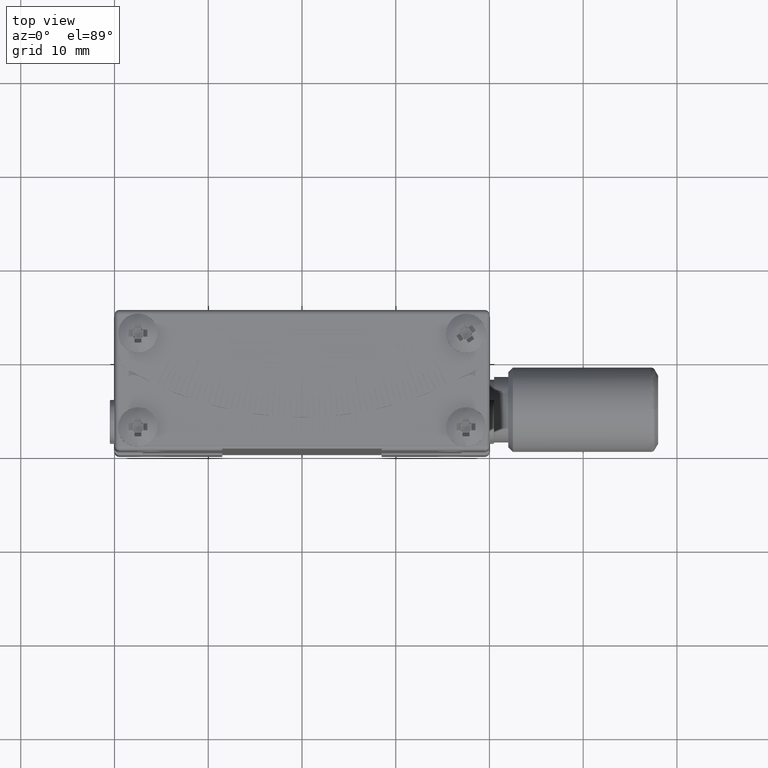
[diagram: clean part render]
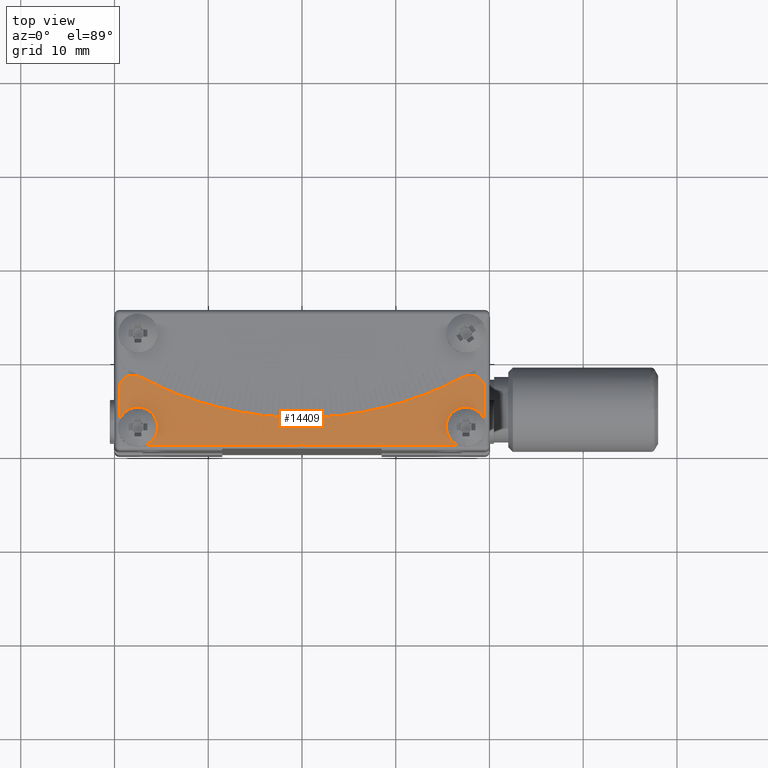
[diagram: same view with one face highlighted and labeled with its STEP entity id]
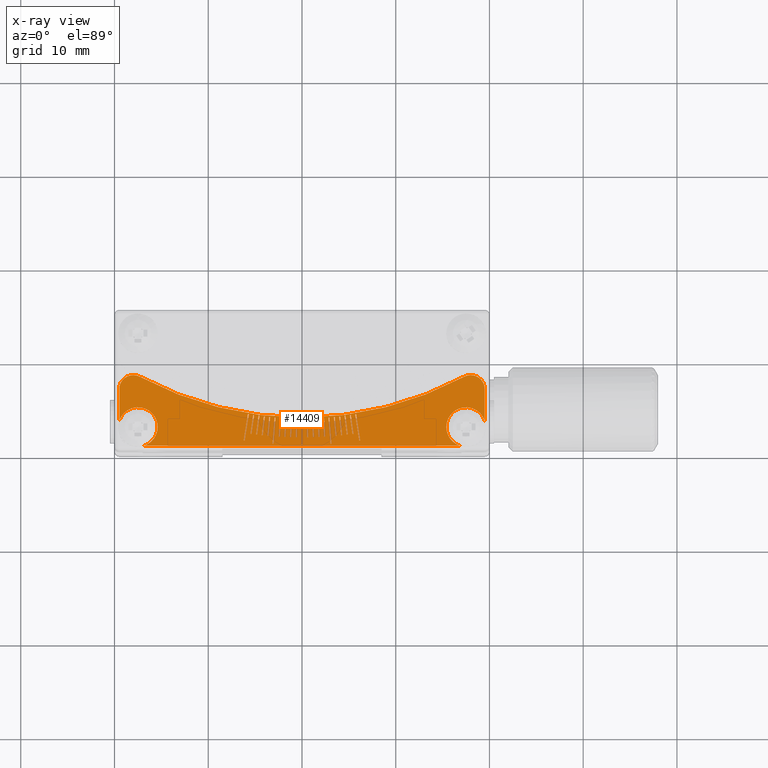
[diagram: x-ray of the same camera — body ghosted, the highlighted face saturated]
A machine part, top view. The second image highlights one B-rep face of the part: STEP entity #14409.
The next image is the same camera in x-ray: the body ghosted, the highlighted face saturated — about 0% of this face is hidden behind the body in this view.
In plain terms, the highlighted planar face has unit normal (0, 0, -1).
Its self-contained STEP definition (entity closure, byte-faithful):
#9 = VERTEX_POINT ( 'NONE', #20521 ) ;
#86 = CARTESIAN_POINT ( 'NONE',  ( 1.774040589721014971, 3.442985898927394928, 20.50000000000000000 ) ) ;
#113 = CARTESIAN_POINT ( 'NONE',  ( -2.348034351194289826, 3.475361265501734742, 20.50000000000000000 ) ) ;
#116 = EDGE_CURVE ( 'NONE', #9749, #27717, #14484, .T. ) ;
#176 = LINE ( 'NONE', #9134, #6710 ) ;
#235 = VERTEX_POINT ( 'NONE', #23158 ) ;
#243 = ORIENTED_EDGE ( 'NONE', *, *, #20906, .T. ) ;
#246 = CARTESIAN_POINT ( 'NONE',  ( 0.6248816452367139673, 3.405300617036825184, 20.50000000000000000 ) ) ;
#273 = VERTEX_POINT ( 'NONE', #10659 ) ;
#351 = VECTOR ( 'NONE', #19840, 1000.000000000000000 ) ;
#352 = ORIENTED_EDGE ( 'NONE', *, *, #12131, .T. ) ;
#366 = VECTOR ( 'NONE', #490, 1000.000000000000227 ) ;
#376 = EDGE_LOOP ( 'NONE', ( #9237, #15293, #6479, #3192 ) ) ;
#380 = VECTOR ( 'NONE', #26583, 1000.000000000000114 ) ;
#395 = LINE ( 'NONE', #20940, #7879 ) ;
#490 = DIRECTION ( 'NONE',  ( -0.9939609554551795956, 0.1097343110910453390, 0.000000000000000000 ) ) ;
#534 = DIRECTION ( 'NONE',  ( -0.09410831331851460257, -0.9955619646030799963, 0.000000000000000000 ) ) ;
#544 = EDGE_CURVE ( 'NONE', #10457, #13348, #27418, .T. ) ;
#562 = DIRECTION ( 'NONE',  ( 1.000000000000000000, 0.000000000000000000, 0.000000000000000000 ) ) ;
#631 = LINE ( 'NONE', #22673, #12894 ) ;
#645 = VECTOR ( 'NONE', #15571, 1000.000000000000000 ) ;
#661 = EDGE_LOOP ( 'NONE', ( #19562, #9373, #6644, #11826 ) ) ;
#689 = DIRECTION ( 'NONE',  ( -0.9969173337331279638, -0.07845909572784509622, 0.000000000000000000 ) ) ;
#810 = EDGE_CURVE ( 'NONE', #25294, #17917, #26805, .T. ) ;
#837 = CARTESIAN_POINT ( 'NONE',  ( -6.212902339614869263, 1.092901103803590068, 20.50000000000000000 ) ) ;
#896 = VERTEX_POINT ( 'NONE', #22981 ) ;
#926 = ORIENTED_EDGE ( 'NONE', *, *, #11685, .T. ) ;
#932 = VERTEX_POINT ( 'NONE', #9619 ) ;
#941 = ORIENTED_EDGE ( 'NONE', *, *, #17748, .T. ) ;
#1043 = EDGE_LOOP ( 'NONE', ( #22775, #5917, #11807, #21717 ) ) ;
#1058 = CARTESIAN_POINT ( 'NONE',  ( -2.473615390252919877, 1.479307808645192068, 20.50000000000000000 ) ) ;
#1074 = CARTESIAN_POINT ( 'NONE',  ( -18.00000000000000000, 0.5000000000000071054, 20.50000000000000000 ) ) ;
#1133 = CARTESIAN_POINT ( 'NONE',  ( -4.636802083519270035, 3.694868593568334525, 20.50000000000000000 ) ) ;
#1159 = ORIENTED_EDGE ( 'NONE', *, *, #27934, .F. ) ;
#1227 = ORIENTED_EDGE ( 'NONE', *, *, #27671, .F. ) ;
#1309 = LINE ( 'NONE', #14958, #22794 ) ;
#1318 = CARTESIAN_POINT ( 'NONE',  ( 4.285442455887105595, 1.638593834984629849, 20.50000000000000000 ) ) ;
#1357 = LINE ( 'NONE', #23245, #9633 ) ;
#1361 = CARTESIAN_POINT ( 'NONE',  ( -1.868253491140310141, 1.445206149003452012, 20.50000000000000000 ) ) ;
#1490 = VECTOR ( 'NONE', #6250, 1000.000000000000227 ) ;
#1496 = VECTOR ( 'NONE', #7722, 1000.000000000000114 ) ;
#1528 = VECTOR ( 'NONE', #17465, 1000.000000000000000 ) ;
#1543 = LINE ( 'NONE', #8009, #3817 ) ;
#1558 = LINE ( 'NONE', #26083, #18008 ) ;
#1637 = VERTEX_POINT ( 'NONE', #26407 ) ;
#1641 = EDGE_CURVE ( 'NONE', #21883, #1637, #17158, .T. ) ;
#1644 = EDGE_CURVE ( 'NONE', #25796, #20959, #23780, .T. ) ;
#1649 = VERTEX_POINT ( 'NONE', #16867 ) ;
#1687 = CARTESIAN_POINT ( 'NONE',  ( -6.212902339614869263, 1.092901103803590068, 20.50000000000000000 ) ) ;
#1694 = CARTESIAN_POINT ( 'NONE',  ( -18.00000000000000000, 6.533598938636989928, 20.50000000000000000 ) ) ;
#1755 = DIRECTION ( 'NONE',  ( -0.03141075907812847928, -0.9995065603657314890, 0.000000000000000000 ) ) ;
#1795 = CARTESIAN_POINT ( 'NONE',  ( -0.6562962798603648729, 1.405547352073502010, 20.50000000000000000 ) ) ;
#1813 = CARTESIAN_POINT ( 'NONE',  ( 0.5248939819885529712, 3.403729885305644576, 20.50000000000000000 ) ) ;
#1817 = DIRECTION ( 'NONE',  ( -0.9998766324816605877, -0.01570731731182069268, 0.000000000000000000 ) ) ;
#1844 = CARTESIAN_POINT ( 'NONE',  ( 4.636802083519261153, 3.694868593568334525, 20.50000000000000000 ) ) ;
#1857 = ORIENTED_EDGE ( 'NONE', *, *, #28027, .F. ) ;
#1877 = CARTESIAN_POINT ( 'NONE',  ( -1.199609110277785939, 3.419630428568140257, 20.50000000000000000 ) ) ;
#1925 = EDGE_CURVE ( 'NONE', #20959, #9522, #22877, .T. ) ;
#1926 = LINE ( 'NONE', #10885, #351 ) ;
#1997 = ORIENTED_EDGE ( 'NONE', *, *, #5970, .T. ) ;
#1999 = ORIENTED_EDGE ( 'NONE', *, *, #19140, .T. ) ;
#2048 = DIRECTION ( 'NONE',  ( -0.06279051952931337388, 0.9980267284282715590, 0.000000000000000000 ) ) ;
#2059 = VERTEX_POINT ( 'NONE', #1813 ) ;
#2082 = DIRECTION ( 'NONE',  ( 0.01570731731182084187, -0.9998766324816605877, 0.000000000000000000 ) ) ;
#2136 = VECTOR ( 'NONE', #9045, 1000.000000000000227 ) ;
#2169 = CARTESIAN_POINT ( 'NONE',  ( 0.6562962798603539927, 1.405547352073502010, 20.50000000000000000 ) ) ;
#2227 = ORIENTED_EDGE ( 'NONE', *, *, #4893, .T. ) ;
#2234 = CARTESIAN_POINT ( 'NONE',  ( 15.40000000000000036, 2.500000000000000000, 20.50000000000000000 ) ) ;
#2249 = LINE ( 'NONE', #15753, #13344 ) ;
#2282 = LINE ( 'NONE', #27373, #24394 ) ;
#2294 = LINE ( 'NONE', #1844, #28371 ) ;
#2351 = CARTESIAN_POINT ( 'NONE',  ( 1.868253491140300149, 1.445206149003452012, 20.50000000000000000 ) ) ;
#2400 = EDGE_LOOP ( 'NONE', ( #19329, #17227, #23086, #1857 ) ) ;
#2460 = VECTOR ( 'NONE', #15377, 1000.000000000000227 ) ;
#2465 = EDGE_CURVE ( 'NONE', #11606, #10650, #3991, .T. ) ;
#2549 = VERTEX_POINT ( 'NONE', #10451 ) ;
#2569 = CARTESIAN_POINT ( 'NONE',  ( 19.50000000000000000, 3.140312423743309989, 20.50000000000000000 ) ) ;
#2596 = VERTEX_POINT ( 'NONE', #25116 ) ;
#2606 = CARTESIAN_POINT ( 'NONE',  ( -2.373812717410095363, 1.473028756692265739, 20.50000000000000000 ) ) ;
#2672 = FACE_BOUND ( 'NONE', #2400, .T. ) ;
#2711 = EDGE_CURVE ( 'NONE', #13951, #25671, #6636, .T. ) ;
#2718 = CARTESIAN_POINT ( 'NONE',  ( -1.262430628434041857, 1.420617307836679943, 20.50000000000000000 ) ) ;
#2762 = LINE ( 'NONE', #5521, #13284 ) ;
#2763 = AXIS2_PLACEMENT_3D ( 'NONE', #1694, #10939, #10648 ) ;
#2774 = VECTOR ( 'NONE', #2932, 999.9999999999998863 ) ;
#2813 = FACE_BOUND ( 'NONE', #19710, .T. ) ;
#2860 = ORIENTED_EDGE ( 'NONE', *, *, #16920, .F. ) ;
#2862 = VERTEX_POINT ( 'NONE', #1318 ) ;
#2932 = DIRECTION ( 'NONE',  ( 0.1409012319375827493, 0.9900236577165576479, 0.000000000000000000 ) ) ;
#2935 = VECTOR ( 'NONE', #17460, 1000.000000000000000 ) ;
#2956 = FACE_BOUND ( 'NONE', #376, .T. ) ;
#2998 = EDGE_CURVE ( 'NONE', #10179, #25796, #4396, .T. ) ;
#3057 = EDGE_CURVE ( 'NONE', #12251, #14209, #9945, .T. ) ;
#3062 = EDGE_CURVE ( 'NONE', #14198, #13785, #18467, .T. ) ;
#3192 = ORIENTED_EDGE ( 'NONE', *, *, #11000, .T. ) ;
#3209 = CARTESIAN_POINT ( 'NONE',  ( 6.114133505555360060, 1.077257657299566018, 20.50000000000000000 ) ) ;
#3259 = ORIENTED_EDGE ( 'NONE', *, *, #116, .T. ) ;
#3306 = ORIENTED_EDGE ( 'NONE', *, *, #17763, .F. ) ;
#3381 = VECTOR ( 'NONE', #11828, 1000.000000000000227 ) ;
#3389 = DIRECTION ( 'NONE',  ( 0.000000000000000000, 0.000000000000000000, -1.000000000000000000 ) ) ;
#3495 = EDGE_CURVE ( 'NONE', #6861, #15456, #5514, .T. ) ;
#3588 = CARTESIAN_POINT ( 'NONE',  ( 3.041442504990444995, 0.7175340961283749319, 20.50000000000000000 ) ) ;
#3616 = CARTESIAN_POINT ( 'NONE',  ( -4.537590613387830096, 3.682335270211904987, 20.50000000000000000 ) ) ;
#3659 = ORIENTED_EDGE ( 'NONE', *, *, #26708, .F. ) ;
#3705 = EDGE_CURVE ( 'NONE', #10297, #17013, #4477, .T. ) ;
#3762 = CIRCLE ( 'NONE', #17353, 1.500000000000001332 ) ;
#3809 = CARTESIAN_POINT ( 'NONE',  ( 5.488288735676519536, 1.792131873737770054, 20.50000000000000000 ) ) ;
#3817 = VECTOR ( 'NONE', #5816, 1000.000000000000227 ) ;
#3844 = CARTESIAN_POINT ( 'NONE',  ( -1.099658454241219996, 3.416489352660335044, 20.50000000000000000 ) ) ;
#3868 = LINE ( 'NONE', #12824, #13323 ) ;
#3877 = ORIENTED_EDGE ( 'NONE', *, *, #3062, .F. ) ;
#3926 = EDGE_CURVE ( 'NONE', #17132, #10131, #5588, .T. ) ;
#3969 = VECTOR ( 'NONE', #28466, 1000.000000000000227 ) ;
#3991 = LINE ( 'NONE', #26602, #20320 ) ;
#4006 = EDGE_CURVE ( 'NONE', #13307, #18097, #1309, .T. ) ;
#4074 = CARTESIAN_POINT ( 'NONE',  ( 3.494142365687774809, 3.567137511193209765, 20.50000000000000000 ) ) ;
#4115 = CARTESIAN_POINT ( 'NONE',  ( 1.199609110277775947, 3.419630428568140257, 20.50000000000000000 ) ) ;
#4143 = VERTEX_POINT ( 'NONE', #15536 ) ;
#4236 = CIRCLE ( 'NONE', #11729, 2.099999999999999645 ) ;
#4243 = ORIENTED_EDGE ( 'NONE', *, *, #21866, .F. ) ;
#4254 = LINE ( 'NONE', #8364, #6152 ) ;
#4259 = CARTESIAN_POINT ( 'NONE',  ( -1.199609110277785939, 3.419630428568140257, 20.50000000000000000 ) ) ;
#4284 = VERTEX_POINT ( 'NONE', #16114 ) ;
#4289 = CARTESIAN_POINT ( 'NONE',  ( 4.537590613387820326, 3.682335270211904987, 20.50000000000000000 ) ) ;
#4326 = ORIENTED_EDGE ( 'NONE', *, *, #1925, .F. ) ;
#4380 = CARTESIAN_POINT ( 'NONE',  ( 17.28947368421054875, 7.854641085796060018, 20.50000000000000000 ) ) ;
#4396 = LINE ( 'NONE', #20098, #28792 ) ;
#4446 = VECTOR ( 'NONE', #25376, 1000.000000000000000 ) ;
#4469 = CARTESIAN_POINT ( 'NONE',  ( 19.50000000000000000, 6.533598938636999698, 20.50000000000000000 ) ) ;
#4477 = LINE ( 'NONE', #28848, #11550 ) ;
#4524 = CARTESIAN_POINT ( 'NONE',  ( 3.494142365687774809, 3.567137511193209765, 20.50000000000000000 ) ) ;
#4541 = VECTOR ( 'NONE', #23446, 1000.000000000000000 ) ;
#4560 = CARTESIAN_POINT ( 'NONE',  ( -5.206486271801369803, 3.772179189170890012, 20.50000000000000000 ) ) ;
#4579 = EDGE_CURVE ( 'NONE', #932, #5365, #26811, .T. ) ;
#4687 = VECTOR ( 'NONE', #26303, 1000.000000000000227 ) ;
#4711 = LINE ( 'NONE', #22327, #1528 ) ;
#4893 = EDGE_CURVE ( 'NONE', #12117, #24417, #12833, .T. ) ;
#4917 = VERTEX_POINT ( 'NONE', #15036 ) ;
#4973 = LINE ( 'NONE', #9363, #21786 ) ;
#4978 = DIRECTION ( 'NONE',  ( -0.9980267284282715590, 0.06279051952931347103, 0.000000000000000000 ) ) ;
#4993 = LINE ( 'NONE', #4560, #10882 ) ;
#5017 = VECTOR ( 'NONE', #534, 1000.000000000000000 ) ;
#5031 = FACE_BOUND ( 'NONE', #10162, .T. ) ;
#5093 = LINE ( 'NONE', #27688, #1496 ) ;
#5109 = CARTESIAN_POINT ( 'NONE',  ( -1.262430628434040081, 1.420617307836679943, 20.50000000000000000 ) ) ;
#5142 = CIRCLE ( 'NONE', #20152, 2.100000000000000977 ) ;
#5159 = CARTESIAN_POINT ( 'NONE',  ( -3.494142365687784579, 3.567137511193209765, 20.50000000000000000 ) ) ;
#5262 = VERTEX_POINT ( 'NONE', #20391 ) ;
#5268 = DIRECTION ( 'NONE',  ( 7.652743436093839813E-16, -1.000000000000000000, 0.000000000000000000 ) ) ;
#5273 = VECTOR ( 'NONE', #21330, 1000.000000000000227 ) ;
#5340 = CARTESIAN_POINT ( 'NONE',  ( 1.199609110277775947, 3.419630428568140257, 20.50000000000000000 ) ) ;
#5365 = VERTEX_POINT ( 'NONE', #12144 ) ;
#5404 = VECTOR ( 'NONE', #13622, 1000.000000000000000 ) ;
#5414 = LINE ( 'NONE', #16410, #17902 ) ;
#5439 = VERTEX_POINT ( 'NONE', #21398 ) ;
#5514 = LINE ( 'NONE', #27536, #10603 ) ;
#5521 = CARTESIAN_POINT ( 'NONE',  ( 2.348034351194280056, 3.475361265501734742, 20.50000000000000000 ) ) ;
#5588 = LINE ( 'NONE', #21289, #28402 ) ;
#5630 = VERTEX_POINT ( 'NONE', #9912 ) ;
#5673 = CARTESIAN_POINT ( 'NONE',  ( -3.041442504990454765, 0.7175340961283749319, 20.50000000000000000 ) ) ;
#5721 = VERTEX_POINT ( 'NONE', #9769 ) ;
#5745 = CARTESIAN_POINT ( 'NONE',  ( 2.821757036952475151, 3.508902630581134829, 20.50000000000000000 ) ) ;
#5816 = DIRECTION ( 'NONE',  ( -0.9988898749619699036, 0.04710645070964280395, 0.000000000000000000 ) ) ;
#5917 = ORIENTED_EDGE ( 'NONE', *, *, #10153, .T. ) ;
#5924 = DIRECTION ( 'NONE',  ( -0.01570731731182084187, -0.9998766324816605877, 0.000000000000000000 ) ) ;
#5970 = EDGE_CURVE ( 'NONE', #25677, #6929, #22528, .T. ) ;
#6048 = EDGE_CURVE ( 'NONE', #13785, #4917, #23098, .T. ) ;
#6144 = CARTESIAN_POINT ( 'NONE',  ( 2.921448770325780320, 3.516748540153920022, 20.50000000000000000 ) ) ;
#6148 = CARTESIAN_POINT ( 'NONE',  ( -0.6562962798603659831, 1.405547352073502010, 20.50000000000000000 ) ) ;
#6152 = VECTOR ( 'NONE', #8802, 1000.000000000000114 ) ;
#6237 = CARTESIAN_POINT ( 'NONE',  ( 1.262430628434031865, 1.420617307836679943, 20.50000000000000000 ) ) ;
#6250 = DIRECTION ( 'NONE',  ( 0.9939609554551795956, -0.1097343110910453390, 0.000000000000000000 ) ) ;
#6260 = ORIENTED_EDGE ( 'NONE', *, *, #27999, .T. ) ;
#6284 = VECTOR ( 'NONE', #9324, 1000.000000000000000 ) ;
#6295 = EDGE_CURVE ( 'NONE', #4143, #24545, #19547, .T. ) ;
#6307 = CARTESIAN_POINT ( 'NONE',  ( -2.248231678351470197, 3.469082213548810412, 20.50000000000000000 ) ) ;
#6433 = CARTESIAN_POINT ( 'NONE',  ( -3.582802795864514778, 1.566602750655200271, 20.50000000000000000 ) ) ;
#6442 = LINE ( 'NONE', #19934, #11259 ) ;
#6479 = ORIENTED_EDGE ( 'NONE', *, *, #4006, .T. ) ;
#6528 = CIRCLE ( 'NONE', #14022, 2.100000000000000977 ) ;
#6587 = ORIENTED_EDGE ( 'NONE', *, *, #17836, .F. ) ;
#6589 = DIRECTION ( 'NONE',  ( 0.9969173337331279638, -0.07845909572784509622, 0.000000000000000000 ) ) ;
#6636 = LINE ( 'NONE', #15580, #27546 ) ;
#6644 = ORIENTED_EDGE ( 'NONE', *, *, #27046, .F. ) ;
#6665 = EDGE_CURVE ( 'NONE', #15722, #12251, #17605, .T. ) ;
#6710 = VECTOR ( 'NONE', #27328, 1000.000000000000000 ) ;
#6778 = ORIENTED_EDGE ( 'NONE', *, *, #3926, .F. ) ;
#6792 = CARTESIAN_POINT ( 'NONE',  ( 3.966577738159505540, 3.615542314785884503, 20.50000000000000000 ) ) ;
#6826 = DIRECTION ( 'NONE',  ( -0.9995065603657314890, 0.03141075907812833357, 0.000000000000000000 ) ) ;
#6827 = DIRECTION ( 'NONE',  ( 1.000000000000000000, 0.000000000000000000, 0.000000000000000000 ) ) ;
#6844 = ORIENTED_EDGE ( 'NONE', *, *, #3705, .F. ) ;
#6861 = VERTEX_POINT ( 'NONE', #7177 ) ;
#6867 = EDGE_CURVE ( 'NONE', #896, #18310, #2762, .T. ) ;
#6871 = LINE ( 'NONE', #27257, #22938 ) ;
#6881 = CARTESIAN_POINT ( 'NONE',  ( -3.494142365687784579, 3.567137511193209765, 20.50000000000000000 ) ) ;
#6896 = LINE ( 'NONE', #7718, #7183 ) ;
#6901 = EDGE_CURVE ( 'NONE', #1637, #17132, #6896, .T. ) ;
#6913 = CARTESIAN_POINT ( 'NONE',  ( -4.887468550647880328, 1.710639190939380105, 20.50000000000000000 ) ) ;
#6929 = VERTEX_POINT ( 'NONE', #27145 ) ;
#6969 = CARTESIAN_POINT ( 'NONE',  ( 5.774885837502209185, 3.858428457469984973, 20.50000000000000000 ) ) ;
#6994 = EDGE_LOOP ( 'NONE', ( #18602, #21251, #13264, #28392 ) ) ;
#7074 = VERTEX_POINT ( 'NONE', #9885 ) ;
#7109 = ORIENTED_EDGE ( 'NONE', *, *, #9470, .T. ) ;
#7114 = CARTESIAN_POINT ( 'NONE',  ( 16.85968757625670023, 0.5000000000000139888, 20.50000000000000000 ) ) ;
#7131 = CARTESIAN_POINT ( 'NONE',  ( -4.788257080516440389, 1.698105867582950124, 20.50000000000000000 ) ) ;
#7177 = CARTESIAN_POINT ( 'NONE',  ( -1.774040589721024963, 3.442985898927394928, 20.50000000000000000 ) ) ;
#7183 = VECTOR ( 'NONE', #20675, 1000.000000000000000 ) ;
#7257 = LINE ( 'NONE', #6969, #16312 ) ;
#7346 = ORIENTED_EDGE ( 'NONE', *, *, #12669, .T. ) ;
#7353 = CARTESIAN_POINT ( 'NONE',  ( -5.107483906029719911, 3.758089065977134879, 20.50000000000000000 ) ) ;
#7379 = ORIENTED_EDGE ( 'NONE', *, *, #23897, .F. ) ;
#7428 = LINE ( 'NONE', #9916, #13496 ) ;
#7441 = ORIENTED_EDGE ( 'NONE', *, *, #6048, .F. ) ;
#7531 = DIRECTION ( 'NONE',  ( -0.1253332335643045636, -0.9921147013144777649, 0.000000000000000000 ) ) ;
#7560 = EDGE_LOOP ( 'NONE', ( #25603, #25030, #28554, #20564 ) ) ;
#7614 = CARTESIAN_POINT ( 'NONE',  ( -5.389286369904880303, 1.778041750544014921, 20.50000000000000000 ) ) ;
#7656 = FACE_BOUND ( 'NONE', #13999, .T. ) ;
#7677 = DIRECTION ( 'NONE',  ( -0.9876883405951375483, -0.1564344650402314241, 0.000000000000000000 ) ) ;
#7691 = CARTESIAN_POINT ( 'NONE',  ( 5.676117003442708864, 3.842785010965959813, 20.50000000000000000 ) ) ;
#7711 = DIRECTION ( 'NONE',  ( -0.04710645070964289416, -0.9988898749619699036, 0.000000000000000000 ) ) ;
#7718 = CARTESIAN_POINT ( 'NONE',  ( -0.05000000000000000278, 0.6000000000000099698, 20.50000000000000000 ) ) ;
#7722 = DIRECTION ( 'NONE',  ( 0.03141075907812823642, 0.9995065603657314890, 0.000000000000000000 ) ) ;
#7749 = EDGE_CURVE ( 'NONE', #25973, #14411, #11957, .T. ) ;
#7817 = VERTEX_POINT ( 'NONE', #27812 ) ;
#7828 = LINE ( 'NONE', #14727, #14149 ) ;
#7852 = VERTEX_POINT ( 'NONE', #3588 ) ;
#7879 = VECTOR ( 'NONE', #14047, 1000.000000000000227 ) ;
#7883 = EDGE_CURVE ( 'NONE', #18310, #17857, #3868, .T. ) ;
#7911 = CARTESIAN_POINT ( 'NONE',  ( -19.50000000000000000, 6.533598938636989928, 20.50000000000000000 ) ) ;
#7921 = VERTEX_POINT ( 'NONE', #8419 ) ;
#7940 = FACE_BOUND ( 'NONE', #1043, .T. ) ;
#7977 = CARTESIAN_POINT ( 'NONE',  ( -0.05000000000000189709, 3.399999999999999911, 20.50000000000000000 ) ) ;
#7997 = EDGE_CURVE ( 'NONE', #13659, #14461, #8719, .T. ) ;
#8009 = CARTESIAN_POINT ( 'NONE',  ( -1.774040589721024963, 3.442985898927394928, 20.50000000000000000 ) ) ;
#8032 = VECTOR ( 'NONE', #8840, 999.9999999999998863 ) ;
#8042 = CARTESIAN_POINT ( 'NONE',  ( 1.674151602224824842, 3.438275253856435398, 20.50000000000000000 ) ) ;
#8068 = ORIENTED_EDGE ( 'NONE', *, *, #10332, .T. ) ;
#8094 = ORIENTED_EDGE ( 'NONE', *, *, #12286, .F. ) ;
#8096 = AXIS2_PLACEMENT_3D ( 'NONE', #13507, #27580, #562 ) ;
#8182 = EDGE_CURVE ( 'NONE', #7852, #13951, #25423, .T. ) ;
#8220 = EDGE_LOOP ( 'NONE', ( #25515, #19438, #25999, #11136 ) ) ;
#8226 = ORIENTED_EDGE ( 'NONE', *, *, #24330, .F. ) ;
#8264 = CARTESIAN_POINT ( 'NONE',  ( 3.682358992324804792, 1.576013581987050216, 20.50000000000000000 ) ) ;
#8364 = CARTESIAN_POINT ( 'NONE',  ( 2.921448770325780320, 3.516748540153920022, 20.50000000000000000 ) ) ;
#8419 = CARTESIAN_POINT ( 'NONE',  ( 3.141134238363744835, 0.7253800057011589031, 20.50000000000000000 ) ) ;
#8469 = VECTOR ( 'NONE', #13061, 1000.000000000000000 ) ;
#8498 = ORIENTED_EDGE ( 'NONE', *, *, #21702, .T. ) ;
#8552 = VECTOR ( 'NONE', #12406, 1000.000000000000000 ) ;
#8568 = DIRECTION ( 'NONE',  ( -0.9995065603657314890, -0.03141075907812833357, 0.000000000000000000 ) ) ;
#8598 = EDGE_CURVE ( 'NONE', #17917, #28391, #26364, .T. ) ;
#8606 = CARTESIAN_POINT ( 'NONE',  ( 0.04999999999999139855, 3.399999999999999911, 20.50000000000000000 ) ) ;
#8643 = VECTOR ( 'NONE', #11208, 1000.000000000000000 ) ;
#8660 = LINE ( 'NONE', #24225, #8469 ) ;
#8717 = VECTOR ( 'NONE', #8568, 1000.000000000000114 ) ;
#8719 = LINE ( 'NONE', #9004, #8643 ) ;
#8802 = DIRECTION ( 'NONE',  ( 0.07845909572784529051, -0.9969173337331278528, 0.000000000000000000 ) ) ;
#8836 = EDGE_LOOP ( 'NONE', ( #23755, #16587, #352, #21134 ) ) ;
#8837 = LINE ( 'NONE', #22192, #17191 ) ;
#8840 = DIRECTION ( 'NONE',  ( -0.1253332335643043693, 0.9921147013144778759, 0.000000000000000000 ) ) ;
#8933 = EDGE_CURVE ( 'NONE', #8961, #15926, #3762, .T. ) ;
#8961 = VERTEX_POINT ( 'NONE', #4469 ) ;
#8963 = CARTESIAN_POINT ( 'NONE',  ( 3.682358992324804792, 1.576013581987050216, 20.50000000000000000 ) ) ;
#9004 = CARTESIAN_POINT ( 'NONE',  ( -2.821757036952485365, 3.508902630581134829, 20.50000000000000000 ) ) ;
#9045 = DIRECTION ( 'NONE',  ( 0.04710645070964289416, -0.9988898749619699036, 0.000000000000000000 ) ) ;
#9134 = CARTESIAN_POINT ( 'NONE',  ( 5.206486271801360921, 3.772179189170890012, 20.50000000000000000 ) ) ;
#9160 = ORIENTED_EDGE ( 'NONE', *, *, #19011, .F. ) ;
#9211 = LINE ( 'NONE', #4524, #2935 ) ;
#9237 = ORIENTED_EDGE ( 'NONE', *, *, #18534, .T. ) ;
#9324 = DIRECTION ( 'NONE',  ( -0.9998766324816605877, 0.01570731731182069268, 0.000000000000000000 ) ) ;
#9363 = CARTESIAN_POINT ( 'NONE',  ( 3.141134238363744835, 0.7253800057011589031, 20.50000000000000000 ) ) ;
#9373 = ORIENTED_EDGE ( 'NONE', *, *, #25832, .F. ) ;
#9385 = CARTESIAN_POINT ( 'NONE',  ( 4.065973833705013973, 3.626515745894989706, 20.50000000000000000 ) ) ;
#9393 = CARTESIAN_POINT ( 'NONE',  ( 5.676117003442708864, 3.842785010965959813, 20.50000000000000000 ) ) ;
#9452 = CARTESIAN_POINT ( 'NONE',  ( -4.065973833705024632, 3.626515745894989706, 20.50000000000000000 ) ) ;
#9461 = DIRECTION ( 'NONE',  ( -0.03141075907812823642, 0.9995065603657314890, 0.000000000000000000 ) ) ;
#9470 = EDGE_CURVE ( 'NONE', #24277, #22772, #11607, .T. ) ;
#9484 = VECTOR ( 'NONE', #18622, 1000.000000000000227 ) ;
#9512 = EDGE_CURVE ( 'NONE', #28391, #7074, #27463, .T. ) ;
#9521 = DIRECTION ( 'NONE',  ( 0.06279051952931356817, -0.9980267284282715590, 0.000000000000000000 ) ) ;
#9522 = VERTEX_POINT ( 'NONE', #16434 ) ;
#9598 = DIRECTION ( 'NONE',  ( -0.9921147013144777649, -0.1253332335643045636, 0.000000000000000000 ) ) ;
#9619 = CARTESIAN_POINT ( 'NONE',  ( 1.774040589721014971, 3.442985898927394928, 20.50000000000000000 ) ) ;
#9633 = VECTOR ( 'NONE', #5924, 1000.000000000000000 ) ;
#9716 = LINE ( 'NONE', #25268, #25378 ) ;
#9727 = DIRECTION ( 'NONE',  ( -0.07845909572784499908, 0.9969173337331279638, 0.000000000000000000 ) ) ;
#9737 = CARTESIAN_POINT ( 'NONE',  ( -17.50000000000000000, 2.500000000000000000, 20.50000000000000000 ) ) ;
#9749 = VERTEX_POINT ( 'NONE', #24065 ) ;
#9751 = DIRECTION ( 'NONE',  ( -0.1564344650402309522, 0.9876883405951376593, 0.000000000000000000 ) ) ;
#9769 = CARTESIAN_POINT ( 'NONE',  ( 4.887468550647869669, 1.710639190939380105, 20.50000000000000000 ) ) ;
#9885 = CARTESIAN_POINT ( 'NONE',  ( -5.107483906029719911, 3.758089065977134879, 20.50000000000000000 ) ) ;
#9910 = EDGE_LOOP ( 'NONE', ( #12392, #11839, #20596, #7379 ) ) ;
#9912 = CARTESIAN_POINT ( 'NONE',  ( -16.85968757625670023, 0.5000000000000071054, 20.50000000000000000 ) ) ;
#9916 = CARTESIAN_POINT ( 'NONE',  ( 4.065973833705013973, 3.626515745894989706, 20.50000000000000000 ) ) ;
#9938 = CARTESIAN_POINT ( 'NONE',  ( 4.636802083519261153, 3.694868593568334525, 20.50000000000000000 ) ) ;
#9945 = LINE ( 'NONE', #837, #14256 ) ;
#9954 = CARTESIAN_POINT ( 'NONE',  ( -3.682358992324815006, 1.576013581987050216, 20.50000000000000000 ) ) ;
#9976 = ORIENTED_EDGE ( 'NONE', *, *, #10427, .T. ) ;
#10000 = FACE_BOUND ( 'NONE', #23716, .T. ) ;
#10048 = ORIENTED_EDGE ( 'NONE', *, *, #2465, .T. ) ;
#10057 = VECTOR ( 'NONE', #1755, 1000.000000000000114 ) ;
#10131 = VERTEX_POINT ( 'NONE', #8606 ) ;
#10147 = PLANE ( 'NONE',  #14615 ) ;
#10153 = EDGE_CURVE ( 'NONE', #1649, #22523, #26227, .T. ) ;
#10162 = EDGE_LOOP ( 'NONE', ( #8094, #2860, #18043, #12664 ) ) ;
#10179 = VERTEX_POINT ( 'NONE', #1058 ) ;
#10247 = CARTESIAN_POINT ( 'NONE',  ( 3.394586169227475025, 3.557726679861360264, 20.50000000000000000 ) ) ;
#10286 = CARTESIAN_POINT ( 'NONE',  ( 18.00000000000000000, 6.533598938636999698, 20.50000000000000000 ) ) ;
#10297 = VERTEX_POINT ( 'NONE', #3844 ) ;
#10307 = ORIENTED_EDGE ( 'NONE', *, *, #6901, .F. ) ;
#10320 = DIRECTION ( 'NONE',  ( -0.9939609554551795956, -0.1097343110910453390, 0.000000000000000000 ) ) ;
#10324 = CARTESIAN_POINT ( 'NONE',  ( -5.774885837502219843, 3.858428457469984973, 20.50000000000000000 ) ) ;
#10332 = EDGE_CURVE ( 'NONE', #19918, #25677, #8837, .T. ) ;
#10357 = DIRECTION ( 'NONE',  ( -0.09410831331851439441, 0.9955619646030799963, 0.000000000000000000 ) ) ;
#10363 = CARTESIAN_POINT ( 'NONE',  ( -2.921448770325790090, 3.516748540153920022, 20.50000000000000000 ) ) ;
#10427 = EDGE_CURVE ( 'NONE', #10650, #24277, #1926, .T. ) ;
#10451 = CARTESIAN_POINT ( 'NONE',  ( -4.285442455887115365, 1.638593834984629849, 20.50000000000000000 ) ) ;
#10457 = VERTEX_POINT ( 'NONE', #5159 ) ;
#10537 = VECTOR ( 'NONE', #10357, 1000.000000000000000 ) ;
#10603 = VECTOR ( 'NONE', #7711, 1000.000000000000227 ) ;
#10648 = DIRECTION ( 'NONE',  ( -1.000000000000000000, 0.000000000000000000, 0.000000000000000000 ) ) ;
#10650 = VERTEX_POINT ( 'NONE', #3809 ) ;
#10659 = CARTESIAN_POINT ( 'NONE',  ( -3.966577738159514865, 3.615542314785884503, 20.50000000000000000 ) ) ;
#10703 = DIRECTION ( 'NONE',  ( -0.1564344650402314241, -0.9876883405951375483, 0.000000000000000000 ) ) ;
#10880 = ORIENTED_EDGE ( 'NONE', *, *, #22358, .T. ) ;
#10881 = DIRECTION ( 'NONE',  ( 0.1409012319375829436, -0.9900236577165575369, 0.000000000000000000 ) ) ;
#10882 = VECTOR ( 'NONE', #23035, 1000.000000000000000 ) ;
#10885 = CARTESIAN_POINT ( 'NONE',  ( 5.488288735676519536, 1.792131873737770054, 20.50000000000000000 ) ) ;
#10939 = DIRECTION ( 'NONE',  ( 0.000000000000000000, 0.000000000000000000, 1.000000000000000000 ) ) ;
#10940 = CARTESIAN_POINT ( 'NONE',  ( 4.788257080516429731, 1.698105867582950124, 20.50000000000000000 ) ) ;
#10978 = LINE ( 'NONE', #24335, #23091 ) ;
#11000 = EDGE_CURVE ( 'NONE', #18097, #13228, #7428, .T. ) ;
#11001 = VERTEX_POINT ( 'NONE', #18432 ) ;
#11009 = CARTESIAN_POINT ( 'NONE',  ( 5.389286369904870533, 1.778041750544014921, 20.50000000000000000 ) ) ;
#11136 = ORIENTED_EDGE ( 'NONE', *, *, #15035, .T. ) ;
#11201 = DIRECTION ( 'NONE',  ( 0.01570731731182059207, 0.9998766324816605877, 0.000000000000000000 ) ) ;
#11208 = DIRECTION ( 'NONE',  ( 0.07845909572784499908, 0.9969173337331279638, 0.000000000000000000 ) ) ;
#11232 = DIRECTION ( 'NONE',  ( 0.1564344650402309522, 0.9876883405951376593, 0.000000000000000000 ) ) ;
#11259 = VECTOR ( 'NONE', #28904, 1000.000000000000000 ) ;
#11395 = EDGE_CURVE ( 'NONE', #273, #28944, #18689, .T. ) ;
#11400 = EDGE_CURVE ( 'NONE', #26641, #11497, #7257, .T. ) ;
#11432 = EDGE_CURVE ( 'NONE', #27889, #12117, #11793, .T. ) ;
#11449 = CARTESIAN_POINT ( 'NONE',  ( -0.5563086166122048759, 1.403976620342320070, 20.50000000000000000 ) ) ;
#11497 = VERTEX_POINT ( 'NONE', #27080 ) ;
#11545 = VECTOR ( 'NONE', #4978, 1000.000000000000000 ) ;
#11550 = VECTOR ( 'NONE', #6826, 1000.000000000000114 ) ;
#11570 = CARTESIAN_POINT ( 'NONE',  ( -2.348034351194289826, 3.475361265501734742, 20.50000000000000000 ) ) ;
#11606 = VERTEX_POINT ( 'NONE', #26160 ) ;
#11607 = LINE ( 'NONE', #16153, #24830 ) ;
#11622 = EDGE_CURVE ( 'NONE', #13348, #24756, #14426, .T. ) ;
#11628 = FACE_BOUND ( 'NONE', #6994, .T. ) ;
#11648 = DIRECTION ( 'NONE',  ( 0.9876883405951375483, 0.1564344650402314241, 0.000000000000000000 ) ) ;
#11660 = LINE ( 'NONE', #1074, #22675 ) ;
#11685 = EDGE_CURVE ( 'NONE', #28828, #9749, #17790, .T. ) ;
#11729 = AXIS2_PLACEMENT_3D ( 'NONE', #14179, #25057, #15952 ) ;
#11746 = VERTEX_POINT ( 'NONE', #2234 ) ;
#11784 = VECTOR ( 'NONE', #2048, 1000.000000000000000 ) ;
#11793 = LINE ( 'NONE', #5340, #16774 ) ;
#11800 = DIRECTION ( 'NONE',  ( 1.000000000000000000, 0.000000000000000000, 0.000000000000000000 ) ) ;
#11807 = ORIENTED_EDGE ( 'NONE', *, *, #21782, .T. ) ;
#11826 = ORIENTED_EDGE ( 'NONE', *, *, #7997, .F. ) ;
#11828 = DIRECTION ( 'NONE',  ( 0.1097343110910455471, -0.9939609554551795956, 0.000000000000000000 ) ) ;
#11839 = ORIENTED_EDGE ( 'NONE', *, *, #544, .F. ) ;
#11840 = CARTESIAN_POINT ( 'NONE',  ( 5.107483906029710141, 3.758089065977134879, 20.50000000000000000 ) ) ;
#11913 = FACE_BOUND ( 'NONE', #11918, .T. ) ;
#11918 = EDGE_LOOP ( 'NONE', ( #16427, #23808, #4326, #26189 ) ) ;
#11957 = LINE ( 'NONE', #18707, #6284 ) ;
#11961 = DIRECTION ( 'NONE',  ( 0.9995065603657314890, -0.03141075907812833357, 0.000000000000000000 ) ) ;
#12041 = DIRECTION ( 'NONE',  ( -1.219727444046191995E-16, 1.000000000000000000, 0.000000000000000000 ) ) ;
#12084 = EDGE_CURVE ( 'NONE', #25671, #7921, #4254, .T. ) ;
#12108 = EDGE_LOOP ( 'NONE', ( #27058, #8226, #6844, #22482 ) ) ;
#12117 = VERTEX_POINT ( 'NONE', #21872 ) ;
#12131 = EDGE_CURVE ( 'NONE', #17857, #11001, #17607, .T. ) ;
#12144 = CARTESIAN_POINT ( 'NONE',  ( 1.868253491140300149, 1.445206149003452012, 20.50000000000000000 ) ) ;
#12202 = ORIENTED_EDGE ( 'NONE', *, *, #15602, .F. ) ;
#12251 = VERTEX_POINT ( 'NONE', #1687 ) ;
#12286 = EDGE_CURVE ( 'NONE', #2549, #29059, #26069, .T. ) ;
#12295 = EDGE_CURVE ( 'NONE', #7817, #6861, #1543, .T. ) ;
#12392 = ORIENTED_EDGE ( 'NONE', *, *, #11622, .F. ) ;
#12406 = DIRECTION ( 'NONE',  ( 0.9998766324816605877, 0.01570731731182069268, 0.000000000000000000 ) ) ;
#12474 = DIRECTION ( 'NONE',  ( 0.9900236577165575369, -0.1409012319375829436, 0.000000000000000000 ) ) ;
#12625 = VERTEX_POINT ( 'NONE', #7114 ) ;
#12664 = ORIENTED_EDGE ( 'NONE', *, *, #28706, .F. ) ;
#12666 = LINE ( 'NONE', #1361, #5273 ) ;
#12669 = EDGE_CURVE ( 'NONE', #6929, #2059, #7828, .T. ) ;
#12770 = VERTEX_POINT ( 'NONE', #8264 ) ;
#12805 = VECTOR ( 'NONE', #13799, 1000.000000000000000 ) ;
#12824 = CARTESIAN_POINT ( 'NONE',  ( 2.473615390252904778, 1.479307808645192068, 20.50000000000000000 ) ) ;
#12833 = LINE ( 'NONE', #6237, #8717 ) ;
#12894 = VECTOR ( 'NONE', #9598, 1000.000000000000000 ) ;
#13039 = EDGE_CURVE ( 'NONE', #4284, #10457, #8660, .T. ) ;
#13061 = DIRECTION ( 'NONE',  ( -0.9955619646030799963, 0.09410831331851449155, 0.000000000000000000 ) ) ;
#13228 = VERTEX_POINT ( 'NONE', #9385 ) ;
#13264 = ORIENTED_EDGE ( 'NONE', *, *, #20522, .F. ) ;
#13284 = VECTOR ( 'NONE', #9521, 1000.000000000000000 ) ;
#13307 = VERTEX_POINT ( 'NONE', #23034 ) ;
#13323 = VECTOR ( 'NONE', #16932, 1000.000000000000000 ) ;
#13336 = CARTESIAN_POINT ( 'NONE',  ( -3.141134238363754605, 0.7253800057011589031, 20.50000000000000000 ) ) ;
#13344 = VECTOR ( 'NONE', #11201, 1000.000000000000000 ) ;
#13348 = VERTEX_POINT ( 'NONE', #9954 ) ;
#13442 = CARTESIAN_POINT ( 'NONE',  ( 17.50000000000000000, 2.500000000000000000, 20.50000000000000000 ) ) ;
#13496 = VECTOR ( 'NONE', #16090, 1000.000000000000227 ) ;
#13507 = CARTESIAN_POINT ( 'NONE',  ( -5.204170427930419706E-15, 40.00000000000000000, 20.50000000000000000 ) ) ;
#13622 = DIRECTION ( 'NONE',  ( -0.06279051952931356817, -0.9980267284282715590, 0.000000000000000000 ) ) ;
#13659 = VERTEX_POINT ( 'NONE', #5673 ) ;
#13785 = VERTEX_POINT ( 'NONE', #25411 ) ;
#13799 = DIRECTION ( 'NONE',  ( 0.9980267284282715590, 0.06279051952931347103, 0.000000000000000000 ) ) ;
#13824 = AXIS2_PLACEMENT_3D ( 'NONE', #9737, #26935, #6827 ) ;
#13834 = FACE_BOUND ( 'NONE', #19509, .T. ) ;
#13951 = VERTEX_POINT ( 'NONE', #5745 ) ;
#13955 = ORIENTED_EDGE ( 'NONE', *, *, #12295, .F. ) ;
#13992 = ORIENTED_EDGE ( 'NONE', *, *, #21190, .T. ) ;
#13999 = EDGE_LOOP ( 'NONE', ( #4243, #6587, #24661, #20984 ) ) ;
#14022 = AXIS2_PLACEMENT_3D ( 'NONE', #13442, #22394, #11800 ) ;
#14047 = DIRECTION ( 'NONE',  ( 0.1097343110910453390, 0.9939609554551795956, 0.000000000000000000 ) ) ;
#14067 = EDGE_LOOP ( 'NONE', ( #27588, #2227, #6260, #15686 ) ) ;
#14149 = VECTOR ( 'NONE', #19267, 1000.000000000000000 ) ;
#14179 = CARTESIAN_POINT ( 'NONE',  ( -17.50000000000000000, 2.500000000000000000, 20.50000000000000000 ) ) ;
#14198 = VERTEX_POINT ( 'NONE', #27153 ) ;
#14209 = VERTEX_POINT ( 'NONE', #28822 ) ;
#14214 = CARTESIAN_POINT ( 'NONE',  ( 1.162479972397465922, 1.417476231928871844, 20.50000000000000000 ) ) ;
#14256 = VECTOR ( 'NONE', #23168, 1000.000000000000114 ) ;
#14348 = EDGE_CURVE ( 'NONE', #28033, #8961, #9716, .T. ) ;
#14409 = ADVANCED_FACE ( 'NONE', ( #16028, #18228, #24988, #2956, #25135, #13834, #2672, #11628, #2813, #5031, #16457, #20581, #11913, #20871, #27620, #7656, #25700, #16891, #28059, #10000, #19100, #7940 ), #10147, .F. ) ;
#14411 = VERTEX_POINT ( 'NONE', #25998 ) ;
#14426 = LINE ( 'NONE', #21176, #20217 ) ;
#14461 = VERTEX_POINT ( 'NONE', #27919 ) ;
#14484 = LINE ( 'NONE', #9938, #4541 ) ;
#14615 = AXIS2_PLACEMENT_3D ( 'NONE', #10286, #3389, #23657 ) ;
#14727 = CARTESIAN_POINT ( 'NONE',  ( 0.5248939819885529712, 3.403729885305644576, 20.50000000000000000 ) ) ;
#14736 = VERTEX_POINT ( 'NONE', #11449 ) ;
#14850 = VERTEX_POINT ( 'NONE', #10247 ) ;
#14868 = DIRECTION ( 'NONE',  ( -1.000000000000000000, 0.000000000000000000, 0.000000000000000000 ) ) ;
#14874 = LINE ( 'NONE', #10324, #19821 ) ;
#14921 = CARTESIAN_POINT ( 'NONE',  ( -5.206486271801369803, 3.772179189170890012, 20.50000000000000000 ) ) ;
#14958 = CARTESIAN_POINT ( 'NONE',  ( 3.966577738159505540, 3.615542314785884503, 20.50000000000000000 ) ) ;
#14983 = VECTOR ( 'NONE', #7531, 1000.000000000000000 ) ;
#15031 = DIRECTION ( 'NONE',  ( -1.000000000000000000, 0.000000000000000000, 0.000000000000000000 ) ) ;
#15035 = EDGE_CURVE ( 'NONE', #24545, #932, #10978, .T. ) ;
#15036 = CARTESIAN_POINT ( 'NONE',  ( -4.887468550647890098, 1.710639190939380105, 20.50000000000000000 ) ) ;
#15064 = DIRECTION ( 'NONE',  ( 0.1253332335643045636, -0.9921147013144777649, 0.000000000000000000 ) ) ;
#15233 = CARTESIAN_POINT ( 'NONE',  ( -1.674151602224834834, 3.438275253856435398, 20.50000000000000000 ) ) ;
#15270 = EDGE_CURVE ( 'NONE', #14736, #25973, #2249, .T. ) ;
#15293 = ORIENTED_EDGE ( 'NONE', *, *, #25307, .T. ) ;
#15347 = CARTESIAN_POINT ( 'NONE',  ( -0.5248939819885640734, 3.403729885305644576, 20.50000000000000000 ) ) ;
#15377 = DIRECTION ( 'NONE',  ( 0.04710645070964259579, 0.9988898749619699036, 0.000000000000000000 ) ) ;
#15456 = VERTEX_POINT ( 'NONE', #23806 ) ;
#15536 = CARTESIAN_POINT ( 'NONE',  ( 1.768364503644110020, 1.440495503932491816, 20.50000000000000000 ) ) ;
#15571 = DIRECTION ( 'NONE',  ( -0.9955619646030799963, -0.09410831331851449155, 0.000000000000000000 ) ) ;
#15580 = CARTESIAN_POINT ( 'NONE',  ( 2.921448770325780320, 3.516748540153920022, 20.50000000000000000 ) ) ;
#15602 = EDGE_CURVE ( 'NONE', #4917, #24068, #16282, .T. ) ;
#15686 = ORIENTED_EDGE ( 'NONE', *, *, #28259, .T. ) ;
#15722 = VERTEX_POINT ( 'NONE', #27733 ) ;
#15753 = CARTESIAN_POINT ( 'NONE',  ( -0.5248939819885640734, 3.403729885305644576, 20.50000000000000000 ) ) ;
#15926 = VERTEX_POINT ( 'NONE', #4380 ) ;
#15925 = CARTESIAN_POINT ( 'NONE',  ( -4.065973833705024632, 3.626515745894989706, 20.50000000000000000 ) ) ;
#15952 = DIRECTION ( 'NONE',  ( 1.000000000000000000, 0.000000000000000000, 0.000000000000000000 ) ) ;
#15961 = LINE ( 'NONE', #113, #5404 ) ;
#16028 = FACE_OUTER_BOUND ( 'NONE', #18690, .T. ) ;
#16030 = EDGE_CURVE ( 'NONE', #9522, #10179, #15961, .T. ) ;
#16085 = VECTOR ( 'NONE', #10703, 1000.000000000000114 ) ;
#16090 = DIRECTION ( 'NONE',  ( 0.9939609554551795956, 0.1097343110910453390, 0.000000000000000000 ) ) ;
#16114 = CARTESIAN_POINT ( 'NONE',  ( -3.394586169227485239, 3.557726679861360264, 20.50000000000000000 ) ) ;
#16153 = CARTESIAN_POINT ( 'NONE',  ( 5.107483906029710141, 3.758089065977134879, 20.50000000000000000 ) ) ;
#16268 = EDGE_LOOP ( 'NONE', ( #10307, #28463, #26888, #6778 ) ) ;
#16282 = LINE ( 'NONE', #6913, #4446 ) ;
#16312 = VECTOR ( 'NONE', #11648, 1000.000000000000114 ) ;
#16410 = CARTESIAN_POINT ( 'NONE',  ( -19.50000000000000000, 6.533598938636989928, 20.50000000000000000 ) ) ;
#16427 = ORIENTED_EDGE ( 'NONE', *, *, #2998, .F. ) ;
#16434 = CARTESIAN_POINT ( 'NONE',  ( -2.348034351194289826, 3.475361265501734742, 20.50000000000000000 ) ) ;
#16457 = FACE_BOUND ( 'NONE', #9910, .T. ) ;
#16480 = DIRECTION ( 'NONE',  ( 0.03141075907812847928, -0.9995065603657314890, 0.000000000000000000 ) ) ;
#16587 = ORIENTED_EDGE ( 'NONE', *, *, #7883, .T. ) ;
#16774 = VECTOR ( 'NONE', #16480, 1000.000000000000114 ) ;
#16867 = CARTESIAN_POINT ( 'NONE',  ( 6.212902339614859493, 1.092901103803590068, 20.50000000000000000 ) ) ;
#16891 = FACE_BOUND ( 'NONE', #14067, .T. ) ;
#16892 = VERTEX_POINT ( 'NONE', #7911 ) ;
#16920 = EDGE_CURVE ( 'NONE', #28944, #2549, #28030, .T. ) ;
#16932 = DIRECTION ( 'NONE',  ( -0.9980267284282715590, -0.06279051952931347103, 0.000000000000000000 ) ) ;
#16961 = LINE ( 'NONE', #3616, #21715 ) ;
#16971 = DIRECTION ( 'NONE',  ( 0.09410831331851439441, 0.9955619646030799963, 0.000000000000000000 ) ) ;
#17013 = VERTEX_POINT ( 'NONE', #1877 ) ;
#17044 = EDGE_CURVE ( 'NONE', #7921, #7852, #4973, .T. ) ;
#17053 = VECTOR ( 'NONE', #6589, 1000.000000000000000 ) ;
#17132 = VERTEX_POINT ( 'NONE', #18456 ) ;
#17158 = LINE ( 'NONE', #26116, #24314 ) ;
#17191 = VECTOR ( 'NONE', #2082, 1000.000000000000000 ) ;
#17227 = ORIENTED_EDGE ( 'NONE', *, *, #6665, .F. ) ;
#17314 = EDGE_CURVE ( 'NONE', #27717, #5721, #2294, .T. ) ;
#17344 = CARTESIAN_POINT ( 'NONE',  ( 1.674151602224824842, 3.438275253856435398, 20.50000000000000000 ) ) ;
#17353 = AXIS2_PLACEMENT_3D ( 'NONE', #21788, #26184, #15031 ) ;
#17460 = DIRECTION ( 'NONE',  ( 0.09410831331851460257, -0.9955619646030799963, 0.000000000000000000 ) ) ;
#17465 = DIRECTION ( 'NONE',  ( 0.9955619646030799963, 0.09410831331851449155, 0.000000000000000000 ) ) ;
#17605 = LINE ( 'NONE', #22156, #16085 ) ;
#17607 = LINE ( 'NONE', #22158, #11784 ) ;
#17748 = EDGE_CURVE ( 'NONE', #5721, #28828, #631, .T. ) ;
#17763 = EDGE_CURVE ( 'NONE', #5630, #9, #26481, .T. ) ;
#17790 = LINE ( 'NONE', #4289, #8032 ) ;
#17836 = EDGE_CURVE ( 'NONE', #14411, #26850, #1357, .T. ) ;
#17857 = VERTEX_POINT ( 'NONE', #28082 ) ;
#17902 = VECTOR ( 'NONE', #5268, 1000.000000000000000 ) ;
#17917 = VERTEX_POINT ( 'NONE', #26158 ) ;
#18008 = VECTOR ( 'NONE', #16971, 1000.000000000000000 ) ;
#18043 = ORIENTED_EDGE ( 'NONE', *, *, #11395, .F. ) ;
#18057 = LINE ( 'NONE', #4115, #380 ) ;
#18097 = VERTEX_POINT ( 'NONE', #6792 ) ;
#18135 = LINE ( 'NONE', #2718, #27877 ) ;
#18228 = FACE_BOUND ( 'NONE', #7560, .T. ) ;
#18267 = VECTOR ( 'NONE', #1817, 1000.000000000000000 ) ;
#18310 = VERTEX_POINT ( 'NONE', #25690 ) ;
#18432 = CARTESIAN_POINT ( 'NONE',  ( 2.248231678351460427, 3.469082213548810412, 20.50000000000000000 ) ) ;
#18456 = CARTESIAN_POINT ( 'NONE',  ( 0.04999999999998799155, 0.6000000000000099698, 20.50000000000000000 ) ) ;
#18467 = LINE ( 'NONE', #1133, #25975 ) ;
#18486 = DIRECTION ( 'NONE',  ( 0.000000000000000000, 0.000000000000000000, 1.000000000000000000 ) ) ;
#18534 = EDGE_CURVE ( 'NONE', #13228, #2862, #27402, .T. ) ;
#18587 = CARTESIAN_POINT ( 'NONE',  ( 4.065973833705013973, 3.626515745894989706, 20.50000000000000000 ) ) ;
#18592 = DIRECTION ( 'NONE',  ( 0.1564344650402314241, -0.9876883405951375483, 0.000000000000000000 ) ) ;
#18602 = ORIENTED_EDGE ( 'NONE', *, *, #8598, .F. ) ;
#18622 = DIRECTION ( 'NONE',  ( -0.9988898749619699036, -0.04710645070964280395, 0.000000000000000000 ) ) ;
#18689 = LINE ( 'NONE', #9452, #366 ) ;
#18690 = EDGE_LOOP ( 'NONE', ( #3659, #22963, #22600, #20639, #24075, #28253, #1227, #3306, #8498, #1159 ) ) ;
#18707 = CARTESIAN_POINT ( 'NONE',  ( -0.6248816452367229601, 3.405300617036825184, 20.50000000000000000 ) ) ;
#18724 = VERTEX_POINT ( 'NONE', #26644 ) ;
#18787 = DIRECTION ( 'NONE',  ( 0.9969173337331279638, 0.07845909572784509622, 0.000000000000000000 ) ) ;
#18875 = CARTESIAN_POINT ( 'NONE',  ( 3.394586169227475025, 3.557726679861360264, 20.50000000000000000 ) ) ;
#18981 = EDGE_CURVE ( 'NONE', #10131, #21883, #23536, .T. ) ;
#18992 = LINE ( 'NONE', #7691, #23608 ) ;
#19011 = EDGE_CURVE ( 'NONE', #15456, #18724, #12666, .T. ) ;
#19015 = CARTESIAN_POINT ( 'NONE',  ( -5.676117003442719522, 3.842785010965959813, 20.50000000000000000 ) ) ;
#19100 = FACE_BOUND ( 'NONE', #28845, .T. ) ;
#19134 = DIRECTION ( 'NONE',  ( 0.9998766324816605877, -0.01570731731182069268, 0.000000000000000000 ) ) ;
#19140 = EDGE_CURVE ( 'NONE', #22772, #11606, #176, .T. ) ;
#19267 = DIRECTION ( 'NONE',  ( -0.01570731731182059207, 0.9998766324816605877, 0.000000000000000000 ) ) ;
#19313 = LINE ( 'NONE', #10363, #28529 ) ;
#19329 = ORIENTED_EDGE ( 'NONE', *, *, #3057, .F. ) ;
#19377 = CARTESIAN_POINT ( 'NONE',  ( -17.28947368421054875, 7.854641085796070676, 20.50000000000000000 ) ) ;
#19438 = ORIENTED_EDGE ( 'NONE', *, *, #20567, .T. ) ;
#19509 = EDGE_LOOP ( 'NONE', ( #8068, #1997, #7346, #243 ) ) ;
#19547 = LINE ( 'NONE', #17344, #4687 ) ;
#19562 = ORIENTED_EDGE ( 'NONE', *, *, #23692, .F. ) ;
#19591 = CARTESIAN_POINT ( 'NONE',  ( -4.285442455887119806, 1.638593834984629849, 20.50000000000000000 ) ) ;
#19607 = CARTESIAN_POINT ( 'NONE',  ( -5.488288735676530194, 1.792131873737770054, 20.50000000000000000 ) ) ;
#19671 = EDGE_CURVE ( 'NONE', #16892, #2596, #5414, .T. ) ;
#19710 = EDGE_LOOP ( 'NONE', ( #12202, #7441, #3877, #20092 ) ) ;
#19794 = VERTEX_POINT ( 'NONE', #4074 ) ;
#19821 = VECTOR ( 'NONE', #28238, 1000.000000000000114 ) ;
#19840 = DIRECTION ( 'NONE',  ( -0.9900236577165575369, -0.1409012319375829436, 0.000000000000000000 ) ) ;
#19918 = VERTEX_POINT ( 'NONE', #246 ) ;
#19932 = DIRECTION ( 'NONE',  ( 0.9988898749619699036, 0.04710645070964280395, 0.000000000000000000 ) ) ;
#19934 = CARTESIAN_POINT ( 'NONE',  ( -2.921448770325790090, 3.516748540153920022, 20.50000000000000000 ) ) ;
#19984 = LINE ( 'NONE', #8963, #645 ) ;
#19985 = EDGE_CURVE ( 'NONE', #235, #10297, #5093, .T. ) ;
#20031 = CARTESIAN_POINT ( 'NONE',  ( 0.6562962798603539927, 1.405547352073502010, 20.50000000000000000 ) ) ;
#20056 = DIRECTION ( 'NONE',  ( -0.1409012319375829436, -0.9900236577165575369, 0.000000000000000000 ) ) ;
#20092 = ORIENTED_EDGE ( 'NONE', *, *, #21454, .F. ) ;
#20098 = CARTESIAN_POINT ( 'NONE',  ( -2.473615390252914992, 1.479307808645192068, 20.50000000000000000 ) ) ;
#20152 = AXIS2_PLACEMENT_3D ( 'NONE', #28024, #18486, #25668 ) ;
#20217 = VECTOR ( 'NONE', #23385, 1000.000000000000000 ) ;
#20236 = VERTEX_POINT ( 'NONE', #19377 ) ;
#20320 = VECTOR ( 'NONE', #10881, 1000.000000000000000 ) ;
#20391 = CARTESIAN_POINT ( 'NONE',  ( 3.582802795864505008, 1.566602750655200271, 20.50000000000000000 ) ) ;
#20425 = DIRECTION ( 'NONE',  ( -0.1409012319375827493, 0.9900236577165576479, 0.000000000000000000 ) ) ;
#20521 = CARTESIAN_POINT ( 'NONE',  ( -15.40000000000000036, 2.500000000000000000, 20.50000000000000000 ) ) ;
#20522 = EDGE_CURVE ( 'NONE', #7074, #25294, #4993, .T. ) ;
#20546 = LINE ( 'NONE', #24953, #12805 ) ;
#20564 = ORIENTED_EDGE ( 'NONE', *, *, #2711, .T. ) ;
#20567 = EDGE_CURVE ( 'NONE', #5365, #4143, #20681, .T. ) ;
#20581 = FACE_BOUND ( 'NONE', #661, .T. ) ;
#20596 = ORIENTED_EDGE ( 'NONE', *, *, #13039, .F. ) ;
#20636 = EDGE_CURVE ( 'NONE', #15926, #20236, #26369, .T. ) ;
#20639 = ORIENTED_EDGE ( 'NONE', *, *, #20636, .T. ) ;
#20675 = DIRECTION ( 'NONE',  ( 1.000000000000000000, 0.000000000000000000, 0.000000000000000000 ) ) ;
#20681 = LINE ( 'NONE', #2351, #9484 ) ;
#20833 = EDGE_CURVE ( 'NONE', #18724, #7817, #26386, .T. ) ;
#20854 = ORIENTED_EDGE ( 'NONE', *, *, #20833, .F. ) ;
#20871 = FACE_BOUND ( 'NONE', #23979, .T. ) ;
#20888 = VERTEX_POINT ( 'NONE', #19015 ) ;
#20906 = EDGE_CURVE ( 'NONE', #2059, #19918, #23857, .T. ) ;
#20934 = LINE ( 'NONE', #18875, #10537 ) ;
#20940 = CARTESIAN_POINT ( 'NONE',  ( -3.966577738159514865, 3.615542314785884503, 20.50000000000000000 ) ) ;
#20958 = ORIENTED_EDGE ( 'NONE', *, *, #3495, .F. ) ;
#20959 = VERTEX_POINT ( 'NONE', #25561 ) ;
#20984 = ORIENTED_EDGE ( 'NONE', *, *, #15270, .F. ) ;
#21090 = VECTOR ( 'NONE', #9727, 1000.000000000000000 ) ;
#21134 = ORIENTED_EDGE ( 'NONE', *, *, #22535, .T. ) ;
#21176 = CARTESIAN_POINT ( 'NONE',  ( -3.682358992324815006, 1.576013581987050216, 20.50000000000000000 ) ) ;
#21184 = DIRECTION ( 'NONE',  ( 1.000000000000000000, 1.927470528863119788E-16, 0.000000000000000000 ) ) ;
#21190 = EDGE_CURVE ( 'NONE', #19794, #12770, #9211, .T. ) ;
#21251 = ORIENTED_EDGE ( 'NONE', *, *, #810, .F. ) ;
#21253 = VECTOR ( 'NONE', #19134, 1000.000000000000000 ) ;
#21289 = CARTESIAN_POINT ( 'NONE',  ( 0.04999999999999139855, 3.399999999999999911, 20.50000000000000000 ) ) ;
#21330 = DIRECTION ( 'NONE',  ( 0.9988898749619699036, -0.04710645070964280395, 0.000000000000000000 ) ) ;
#21398 = CARTESIAN_POINT ( 'NONE',  ( -3.141134238363754605, 0.7253800057011589031, 20.50000000000000000 ) ) ;
#21454 = EDGE_CURVE ( 'NONE', #24068, #14198, #16961, .T. ) ;
#21467 = ORIENTED_EDGE ( 'NONE', *, *, #23448, .T. ) ;
#21505 = VECTOR ( 'NONE', #10320, 1000.000000000000227 ) ;
#21702 = EDGE_CURVE ( 'NONE', #5630, #12625, #11660, .T. ) ;
#21709 = DIRECTION ( 'NONE',  ( 0.06279051952931337388, 0.9980267284282715590, 0.000000000000000000 ) ) ;
#21715 = VECTOR ( 'NONE', #26355, 999.9999999999998863 ) ;
#21717 = ORIENTED_EDGE ( 'NONE', *, *, #11400, .T. ) ;
#21782 = EDGE_CURVE ( 'NONE', #22523, #26641, #18992, .T. ) ;
#21786 = VECTOR ( 'NONE', #689, 1000.000000000000000 ) ;
#21788 = CARTESIAN_POINT ( 'NONE',  ( 18.00000000000000000, 6.533598938636999698, 20.50000000000000000 ) ) ;
#21866 = EDGE_CURVE ( 'NONE', #26850, #14736, #26172, .T. ) ;
#21872 = CARTESIAN_POINT ( 'NONE',  ( 1.262430628434031865, 1.420617307836679943, 20.50000000000000000 ) ) ;
#21875 = LINE ( 'NONE', #4259, #10057 ) ;
#21883 = VERTEX_POINT ( 'NONE', #7977 ) ;
#21904 = EDGE_CURVE ( 'NONE', #20888, #15722, #14874, .T. ) ;
#22000 = DIRECTION ( 'NONE',  ( -1.219727444046191995E-16, -1.000000000000000000, 0.000000000000000000 ) ) ;
#22055 = CARTESIAN_POINT ( 'NONE',  ( 4.285442455887105595, 1.638593834984629849, 20.50000000000000000 ) ) ;
#22156 = CARTESIAN_POINT ( 'NONE',  ( -5.774885837502219843, 3.858428457469984973, 20.50000000000000000 ) ) ;
#22158 = CARTESIAN_POINT ( 'NONE',  ( 2.248231678351460427, 3.469082213548810412, 20.50000000000000000 ) ) ;
#22192 = CARTESIAN_POINT ( 'NONE',  ( 0.6248816452367120799, 3.405300617036825184, 20.50000000000000000 ) ) ;
#22327 = CARTESIAN_POINT ( 'NONE',  ( 3.494142365687774809, 3.567137511193209765, 20.50000000000000000 ) ) ;
#22358 = EDGE_CURVE ( 'NONE', #14850, #19794, #4711, .T. ) ;
#22394 = DIRECTION ( 'NONE',  ( 0.000000000000000000, 0.000000000000000000, 1.000000000000000000 ) ) ;
#22482 = ORIENTED_EDGE ( 'NONE', *, *, #19985, .F. ) ;
#22523 = VERTEX_POINT ( 'NONE', #3209 ) ;
#22528 = LINE ( 'NONE', #20031, #18267 ) ;
#22535 = EDGE_CURVE ( 'NONE', #11001, #896, #20546, .T. ) ;
#22600 = ORIENTED_EDGE ( 'NONE', *, *, #8933, .T. ) ;
#22673 = CARTESIAN_POINT ( 'NONE',  ( 4.887468550647869669, 1.710639190939380105, 20.50000000000000000 ) ) ;
#22675 = VECTOR ( 'NONE', #21184, 1000.000000000000000 ) ;
#22772 = VERTEX_POINT ( 'NONE', #11840 ) ;
#22775 = ORIENTED_EDGE ( 'NONE', *, *, #27663, .T. ) ;
#22794 = VECTOR ( 'NONE', #28035, 1000.000000000000227 ) ;
#22877 = LINE ( 'NONE', #11570, #11545 ) ;
#22938 = VECTOR ( 'NONE', #18592, 1000.000000000000114 ) ;
#22963 = ORIENTED_EDGE ( 'NONE', *, *, #14348, .T. ) ;
#22981 = CARTESIAN_POINT ( 'NONE',  ( 2.348034351194280056, 3.475361265501734742, 20.50000000000000000 ) ) ;
#23034 = CARTESIAN_POINT ( 'NONE',  ( 4.186046360341594941, 1.627620403875525090, 20.50000000000000000 ) ) ;
#23035 = DIRECTION ( 'NONE',  ( -0.9900236577165575369, 0.1409012319375829436, 0.000000000000000000 ) ) ;
#23086 = ORIENTED_EDGE ( 'NONE', *, *, #21904, .F. ) ;
#23090 = VECTOR ( 'NONE', #14868, 1000.000000000000000 ) ;
#23091 = VECTOR ( 'NONE', #19932, 1000.000000000000227 ) ;
#23098 = LINE ( 'NONE', #27508, #14983 ) ;
#23158 = CARTESIAN_POINT ( 'NONE',  ( -1.162479972397476136, 1.417476231928871844, 20.50000000000000000 ) ) ;
#23168 = DIRECTION ( 'NONE',  ( 0.9876883405951375483, -0.1564344650402314241, 0.000000000000000000 ) ) ;
#23245 = CARTESIAN_POINT ( 'NONE',  ( -0.6248816452367229601, 3.405300617036825184, 20.50000000000000000 ) ) ;
#23385 = DIRECTION ( 'NONE',  ( 0.9955619646030799963, -0.09410831331851449155, 0.000000000000000000 ) ) ;
#23446 = DIRECTION ( 'NONE',  ( 0.9921147013144777649, 0.1253332335643045636, 0.000000000000000000 ) ) ;
#23448 = EDGE_CURVE ( 'NONE', #12770, #5262, #19984, .T. ) ;
#23493 = ORIENTED_EDGE ( 'NONE', *, *, #17314, .T. ) ;
#23536 = LINE ( 'NONE', #26165, #23090 ) ;
#23566 = CARTESIAN_POINT ( 'NONE',  ( 0.6248816452367120799, 3.405300617036825184, 20.50000000000000000 ) ) ;
#23608 = VECTOR ( 'NONE', #9751, 1000.000000000000227 ) ;
#23657 = DIRECTION ( 'NONE',  ( 0.000000000000000000, -1.000000000000000000, 0.000000000000000000 ) ) ;
#23692 = EDGE_CURVE ( 'NONE', #5439, #13659, #24203, .T. ) ;
#23716 = EDGE_LOOP ( 'NONE', ( #13992, #21467, #28648, #10880 ) ) ;
#23755 = ORIENTED_EDGE ( 'NONE', *, *, #6867, .T. ) ;
#23772 = VERTEX_POINT ( 'NONE', #5109 ) ;
#23780 = LINE ( 'NONE', #6307, #24783 ) ;
#23806 = CARTESIAN_POINT ( 'NONE',  ( -1.868253491140310141, 1.445206149003452012, 20.50000000000000000 ) ) ;
#23808 = ORIENTED_EDGE ( 'NONE', *, *, #16030, .F. ) ;
#23857 = LINE ( 'NONE', #23566, #8552 ) ;
#23876 = CIRCLE ( 'NONE', #2763, 1.500000000000001332 ) ;
#23897 = EDGE_CURVE ( 'NONE', #24756, #4284, #1558, .T. ) ;
#23979 = EDGE_LOOP ( 'NONE', ( #9160, #20958, #13955, #20854 ) ) ;
#24016 = EDGE_CURVE ( 'NONE', #23772, #235, #18135, .T. ) ;
#24030 = CARTESIAN_POINT ( 'NONE',  ( 6.212902339614859493, 1.092901103803590068, 20.50000000000000000 ) ) ;
#24065 = CARTESIAN_POINT ( 'NONE',  ( 4.537590613387820326, 3.682335270211904987, 20.50000000000000000 ) ) ;
#24068 = VERTEX_POINT ( 'NONE', #7131 ) ;
#24075 = ORIENTED_EDGE ( 'NONE', *, *, #25934, .T. ) ;
#24203 = LINE ( 'NONE', #13336, #17053 ) ;
#24225 = CARTESIAN_POINT ( 'NONE',  ( -3.494142365687784579, 3.567137511193209765, 20.50000000000000000 ) ) ;
#24277 = VERTEX_POINT ( 'NONE', #11009 ) ;
#24314 = VECTOR ( 'NONE', #22000, 1000.000000000000000 ) ;
#24330 = EDGE_CURVE ( 'NONE', #17013, #23772, #21875, .T. ) ;
#24335 = CARTESIAN_POINT ( 'NONE',  ( 1.774040589721014971, 3.442985898927394928, 20.50000000000000000 ) ) ;
#24363 = VECTOR ( 'NONE', #12474, 1000.000000000000000 ) ;
#24394 = VECTOR ( 'NONE', #11232, 1000.000000000000227 ) ;
#24417 = VERTEX_POINT ( 'NONE', #14214 ) ;
#24545 = VERTEX_POINT ( 'NONE', #8042 ) ;
#24635 = CARTESIAN_POINT ( 'NONE',  ( -2.921448770325790090, 3.516748540153920022, 20.50000000000000000 ) ) ;
#24661 = ORIENTED_EDGE ( 'NONE', *, *, #7749, .F. ) ;
#24756 = VERTEX_POINT ( 'NONE', #6433 ) ;
#24783 = VECTOR ( 'NONE', #21709, 1000.000000000000000 ) ;
#24830 = VECTOR ( 'NONE', #20425, 999.9999999999998863 ) ;
#24945 = EDGE_CURVE ( 'NONE', #5262, #14850, #20934, .T. ) ;
#24953 = CARTESIAN_POINT ( 'NONE',  ( 2.348034351194280056, 3.475361265501734742, 20.50000000000000000 ) ) ;
#24988 = FACE_BOUND ( 'NONE', #25579, .T. ) ;
#25030 = ORIENTED_EDGE ( 'NONE', *, *, #17044, .T. ) ;
#25057 = DIRECTION ( 'NONE',  ( 0.000000000000000000, 0.000000000000000000, 1.000000000000000000 ) ) ;
#25116 = CARTESIAN_POINT ( 'NONE',  ( -19.50000000000000000, 3.140312423743280235, 20.50000000000000000 ) ) ;
#25135 = FACE_BOUND ( 'NONE', #8220, .T. ) ;
#25170 = LINE ( 'NONE', #27089, #25794 ) ;
#25268 = CARTESIAN_POINT ( 'NONE',  ( 19.50000000000000000, 6.533598938636999698, 20.50000000000000000 ) ) ;
#25294 = VERTEX_POINT ( 'NONE', #25449 ) ;
#25307 = EDGE_CURVE ( 'NONE', #2862, #13307, #28526, .T. ) ;
#25376 = DIRECTION ( 'NONE',  ( 0.9921147013144777649, -0.1253332335643045636, 0.000000000000000000 ) ) ;
#25378 = VECTOR ( 'NONE', #27335, 1000.000000000000000 ) ;
#25411 = CARTESIAN_POINT ( 'NONE',  ( -4.636802083519270035, 3.694868593568334525, 20.50000000000000000 ) ) ;
#25423 = LINE ( 'NONE', #27205, #21090 ) ;
#25449 = CARTESIAN_POINT ( 'NONE',  ( -5.206486271801369803, 3.772179189170890012, 20.50000000000000000 ) ) ;
#25515 = ORIENTED_EDGE ( 'NONE', *, *, #4579, .T. ) ;
#25561 = CARTESIAN_POINT ( 'NONE',  ( -2.248231678351470197, 3.469082213548810412, 20.50000000000000000 ) ) ;
#25579 = EDGE_LOOP ( 'NONE', ( #10048, #9976, #7109, #1999 ) ) ;
#25603 = ORIENTED_EDGE ( 'NONE', *, *, #12084, .T. ) ;
#25642 = VECTOR ( 'NONE', #20056, 1000.000000000000000 ) ;
#25668 = DIRECTION ( 'NONE',  ( 1.000000000000000000, 0.000000000000000000, 0.000000000000000000 ) ) ;
#25671 = VERTEX_POINT ( 'NONE', #6144 ) ;
#25677 = VERTEX_POINT ( 'NONE', #2169 ) ;
#25690 = CARTESIAN_POINT ( 'NONE',  ( 2.473615390252904778, 1.479307808645192068, 20.50000000000000000 ) ) ;
#25700 = FACE_BOUND ( 'NONE', #16268, .T. ) ;
#25794 = VECTOR ( 'NONE', #9461, 1000.000000000000114 ) ;
#25796 = VERTEX_POINT ( 'NONE', #2606 ) ;
#25805 = CARTESIAN_POINT ( 'NONE',  ( 1.099658454241210004, 3.416489352660335044, 20.50000000000000000 ) ) ;
#25832 = EDGE_CURVE ( 'NONE', #27025, #5439, #19313, .T. ) ;
#25934 = EDGE_CURVE ( 'NONE', #20236, #16892, #23876, .T. ) ;
#25973 = VERTEX_POINT ( 'NONE', #15347 ) ;
#25975 = VECTOR ( 'NONE', #27431, 1000.000000000000000 ) ;
#25998 = CARTESIAN_POINT ( 'NONE',  ( -0.6248816452367229601, 3.405300617036825184, 20.50000000000000000 ) ) ;
#25999 = ORIENTED_EDGE ( 'NONE', *, *, #6295, .T. ) ;
#26069 = LINE ( 'NONE', #19591, #1490 ) ;
#26083 = CARTESIAN_POINT ( 'NONE',  ( -3.394586169227485239, 3.557726679861360264, 20.50000000000000000 ) ) ;
#26111 = CARTESIAN_POINT ( 'NONE',  ( -4.065973833705024632, 3.626515745894989706, 20.50000000000000000 ) ) ;
#26116 = CARTESIAN_POINT ( 'NONE',  ( -0.05000000000000189709, 3.399999999999999911, 20.50000000000000000 ) ) ;
#26158 = CARTESIAN_POINT ( 'NONE',  ( -5.488288735676530194, 1.792131873737770054, 20.50000000000000000 ) ) ;
#26160 = CARTESIAN_POINT ( 'NONE',  ( 5.206486271801350263, 3.772179189170890012, 20.50000000000000000 ) ) ;
#26165 = CARTESIAN_POINT ( 'NONE',  ( -0.05000000000000189709, 3.399999999999999911, 20.50000000000000000 ) ) ;
#26172 = LINE ( 'NONE', #1795, #21253 ) ;
#26184 = DIRECTION ( 'NONE',  ( 0.000000000000000000, 0.000000000000000000, 1.000000000000000000 ) ) ;
#26189 = ORIENTED_EDGE ( 'NONE', *, *, #1644, .F. ) ;
#26227 = LINE ( 'NONE', #24030, #26598 ) ;
#26303 = DIRECTION ( 'NONE',  ( -0.04710645070964259579, 0.9988898749619699036, 0.000000000000000000 ) ) ;
#26355 = DIRECTION ( 'NONE',  ( 0.1253332335643043693, 0.9921147013144778759, 0.000000000000000000 ) ) ;
#26364 = LINE ( 'NONE', #19607, #24363 ) ;
#26369 = CIRCLE ( 'NONE', #8096, 36.50000000000000000 ) ;
#26386 = LINE ( 'NONE', #15233, #2460 ) ;
#26407 = CARTESIAN_POINT ( 'NONE',  ( -0.05000000000000000278, 0.6000000000000099698, 20.50000000000000000 ) ) ;
#26481 = CIRCLE ( 'NONE', #13824, 2.099999999999999645 ) ;
#26583 = DIRECTION ( 'NONE',  ( 0.9995065603657314890, 0.03141075907812833357, 0.000000000000000000 ) ) ;
#26598 = VECTOR ( 'NONE', #7677, 1000.000000000000114 ) ;
#26602 = CARTESIAN_POINT ( 'NONE',  ( 5.206486271801360921, 3.772179189170890012, 20.50000000000000000 ) ) ;
#26641 = VERTEX_POINT ( 'NONE', #9393 ) ;
#26644 = CARTESIAN_POINT ( 'NONE',  ( -1.768364503644120012, 1.440495503932491816, 20.50000000000000000 ) ) ;
#26708 = EDGE_CURVE ( 'NONE', #28033, #11746, #5142, .T. ) ;
#26805 = LINE ( 'NONE', #14921, #25642 ) ;
#26811 = LINE ( 'NONE', #86, #2136 ) ;
#26850 = VERTEX_POINT ( 'NONE', #6148 ) ;
#26888 = ORIENTED_EDGE ( 'NONE', *, *, #18981, .F. ) ;
#26935 = DIRECTION ( 'NONE',  ( 0.000000000000000000, 0.000000000000000000, 1.000000000000000000 ) ) ;
#27025 = VERTEX_POINT ( 'NONE', #24635 ) ;
#27046 = EDGE_CURVE ( 'NONE', #14461, #27025, #6442, .T. ) ;
#27058 = ORIENTED_EDGE ( 'NONE', *, *, #24016, .F. ) ;
#27080 = CARTESIAN_POINT ( 'NONE',  ( 5.774885837502209185, 3.858428457469984973, 20.50000000000000000 ) ) ;
#27089 = CARTESIAN_POINT ( 'NONE',  ( 1.099658454241210004, 3.416489352660335044, 20.50000000000000000 ) ) ;
#27118 = CARTESIAN_POINT ( 'NONE',  ( 4.636802083519261153, 3.694868593568334525, 20.50000000000000000 ) ) ;
#27145 = CARTESIAN_POINT ( 'NONE',  ( 0.5563086166121939957, 1.403976620342320070, 20.50000000000000000 ) ) ;
#27153 = CARTESIAN_POINT ( 'NONE',  ( -4.537590613387830096, 3.682335270211904987, 20.50000000000000000 ) ) ;
#27205 = CARTESIAN_POINT ( 'NONE',  ( 2.821757036952475151, 3.508902630581134829, 20.50000000000000000 ) ) ;
#27257 = CARTESIAN_POINT ( 'NONE',  ( 5.774885837502209185, 3.858428457469984973, 20.50000000000000000 ) ) ;
#27283 = DIRECTION ( 'NONE',  ( 0.9980267284282715590, -0.06279051952931347103, 0.000000000000000000 ) ) ;
#27328 = DIRECTION ( 'NONE',  ( 0.9900236577165575369, 0.1409012319375829436, 0.000000000000000000 ) ) ;
#27335 = DIRECTION ( 'NONE',  ( 7.652743436093839813E-16, 1.000000000000000000, 0.000000000000000000 ) ) ;
#27373 = CARTESIAN_POINT ( 'NONE',  ( -5.676117003442719522, 3.842785010965959813, 20.50000000000000000 ) ) ;
#27381 = VERTEX_POINT ( 'NONE', #25805 ) ;
#27402 = LINE ( 'NONE', #18587, #3381 ) ;
#27418 = LINE ( 'NONE', #6881, #5017 ) ;
#27431 = DIRECTION ( 'NONE',  ( -0.9921147013144777649, 0.1253332335643045636, 0.000000000000000000 ) ) ;
#27463 = LINE ( 'NONE', #7353, #2774 ) ;
#27508 = CARTESIAN_POINT ( 'NONE',  ( -4.636802083519270035, 3.694868593568334525, 20.50000000000000000 ) ) ;
#27536 = CARTESIAN_POINT ( 'NONE',  ( -1.774040589721024963, 3.442985898927394928, 20.50000000000000000 ) ) ;
#27546 = VECTOR ( 'NONE', #18787, 1000.000000000000000 ) ;
#27580 = DIRECTION ( 'NONE',  ( 0.000000000000000000, 0.000000000000000000, -1.000000000000000000 ) ) ;
#27588 = ORIENTED_EDGE ( 'NONE', *, *, #11432, .T. ) ;
#27620 = FACE_BOUND ( 'NONE', #12108, .T. ) ;
#27663 = EDGE_CURVE ( 'NONE', #11497, #1649, #6871, .T. ) ;
#27671 = EDGE_CURVE ( 'NONE', #9, #2596, #4236, .T. ) ;
#27688 = CARTESIAN_POINT ( 'NONE',  ( -1.099658454241219996, 3.416489352660335044, 20.50000000000000000 ) ) ;
#27717 = VERTEX_POINT ( 'NONE', #27118 ) ;
#27733 = CARTESIAN_POINT ( 'NONE',  ( -5.774885837502219843, 3.858428457469984973, 20.50000000000000000 ) ) ;
#27806 = CARTESIAN_POINT ( 'NONE',  ( -4.186046360341605599, 1.627620403875525090, 20.50000000000000000 ) ) ;
#27812 = CARTESIAN_POINT ( 'NONE',  ( -1.674151602224834834, 3.438275253856435398, 20.50000000000000000 ) ) ;
#27877 = VECTOR ( 'NONE', #11961, 1000.000000000000114 ) ;
#27889 = VERTEX_POINT ( 'NONE', #28562 ) ;
#27919 = CARTESIAN_POINT ( 'NONE',  ( -2.821757036952485365, 3.508902630581134829, 20.50000000000000000 ) ) ;
#27934 = EDGE_CURVE ( 'NONE', #11746, #12625, #6528, .T. ) ;
#27999 = EDGE_CURVE ( 'NONE', #24417, #27381, #25170, .T. ) ;
#28024 = CARTESIAN_POINT ( 'NONE',  ( 17.50000000000000000, 2.500000000000000000, 20.50000000000000000 ) ) ;
#28027 = EDGE_CURVE ( 'NONE', #14209, #20888, #2282, .T. ) ;
#28030 = LINE ( 'NONE', #26111, #3969 ) ;
#28033 = VERTEX_POINT ( 'NONE', #2569 ) ;
#28035 = DIRECTION ( 'NONE',  ( -0.1097343110910453390, 0.9939609554551795956, 0.000000000000000000 ) ) ;
#28059 = FACE_BOUND ( 'NONE', #8836, .T. ) ;
#28082 = CARTESIAN_POINT ( 'NONE',  ( 2.373812717410085149, 1.473028756692265739, 20.50000000000000000 ) ) ;
#28136 = DIRECTION ( 'NONE',  ( -0.07845909572784529051, -0.9969173337331278528, 0.000000000000000000 ) ) ;
#28238 = DIRECTION ( 'NONE',  ( -0.9876883405951375483, 0.1564344650402314241, 0.000000000000000000 ) ) ;
#28253 = ORIENTED_EDGE ( 'NONE', *, *, #19671, .T. ) ;
#28259 = EDGE_CURVE ( 'NONE', #27381, #27889, #18057, .T. ) ;
#28371 = VECTOR ( 'NONE', #15064, 1000.000000000000000 ) ;
#28391 = VERTEX_POINT ( 'NONE', #7614 ) ;
#28392 = ORIENTED_EDGE ( 'NONE', *, *, #9512, .F. ) ;
#28402 = VECTOR ( 'NONE', #12041, 1000.000000000000000 ) ;
#28463 = ORIENTED_EDGE ( 'NONE', *, *, #1641, .F. ) ;
#28466 = DIRECTION ( 'NONE',  ( -0.1097343110910455471, -0.9939609554551795956, 0.000000000000000000 ) ) ;
#28526 = LINE ( 'NONE', #22055, #21505 ) ;
#28529 = VECTOR ( 'NONE', #28136, 1000.000000000000114 ) ;
#28554 = ORIENTED_EDGE ( 'NONE', *, *, #8182, .T. ) ;
#28562 = CARTESIAN_POINT ( 'NONE',  ( 1.199609110277775947, 3.419630428568140257, 20.50000000000000000 ) ) ;
#28648 = ORIENTED_EDGE ( 'NONE', *, *, #24945, .T. ) ;
#28706 = EDGE_CURVE ( 'NONE', #29059, #273, #395, .T. ) ;
#28792 = VECTOR ( 'NONE', #27283, 1000.000000000000000 ) ;
#28822 = CARTESIAN_POINT ( 'NONE',  ( -6.114133505555369830, 1.077257657299566018, 20.50000000000000000 ) ) ;
#28828 = VERTEX_POINT ( 'NONE', #10940 ) ;
#28845 = EDGE_LOOP ( 'NONE', ( #23493, #941, #926, #3259 ) ) ;
#28848 = CARTESIAN_POINT ( 'NONE',  ( -1.199609110277785939, 3.419630428568140257, 20.50000000000000000 ) ) ;
#28904 = DIRECTION ( 'NONE',  ( -0.9969173337331279638, 0.07845909572784509622, 0.000000000000000000 ) ) ;
#28944 = VERTEX_POINT ( 'NONE', #15925 ) ;
#29059 = VERTEX_POINT ( 'NONE', #27806 ) ;